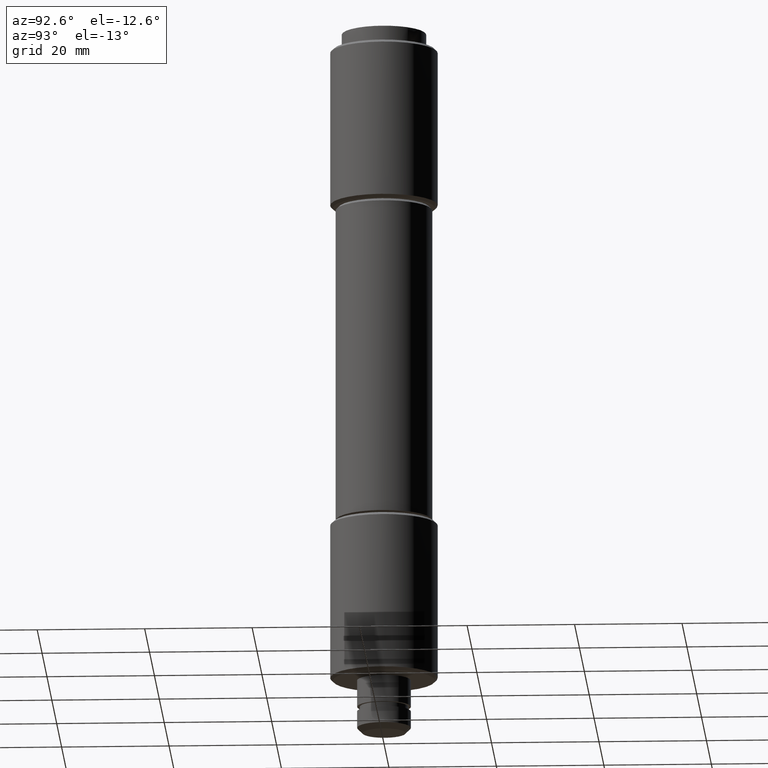
[diagram: clean part render]
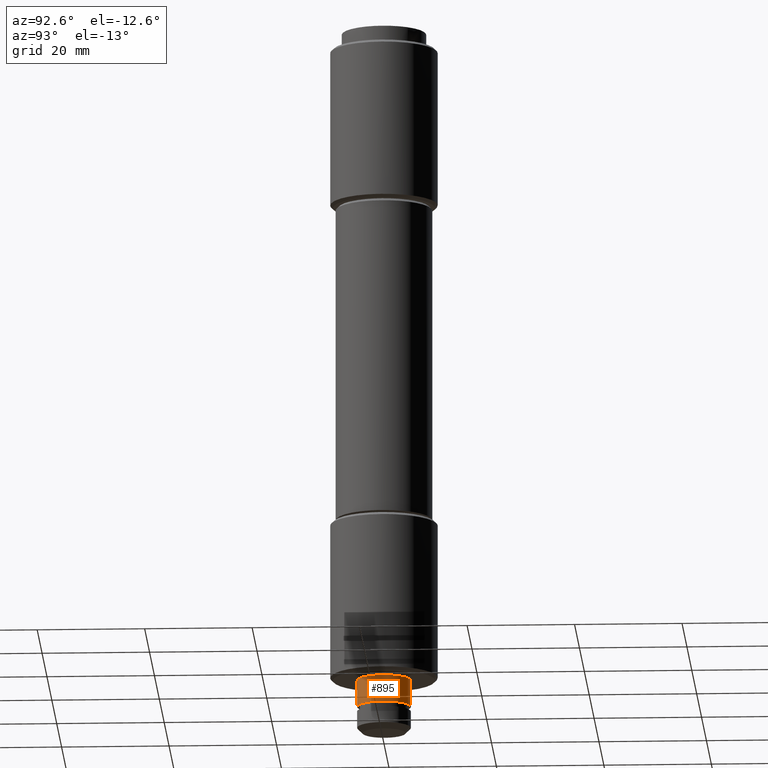
[diagram: same view with one face highlighted and labeled with its STEP entity id]
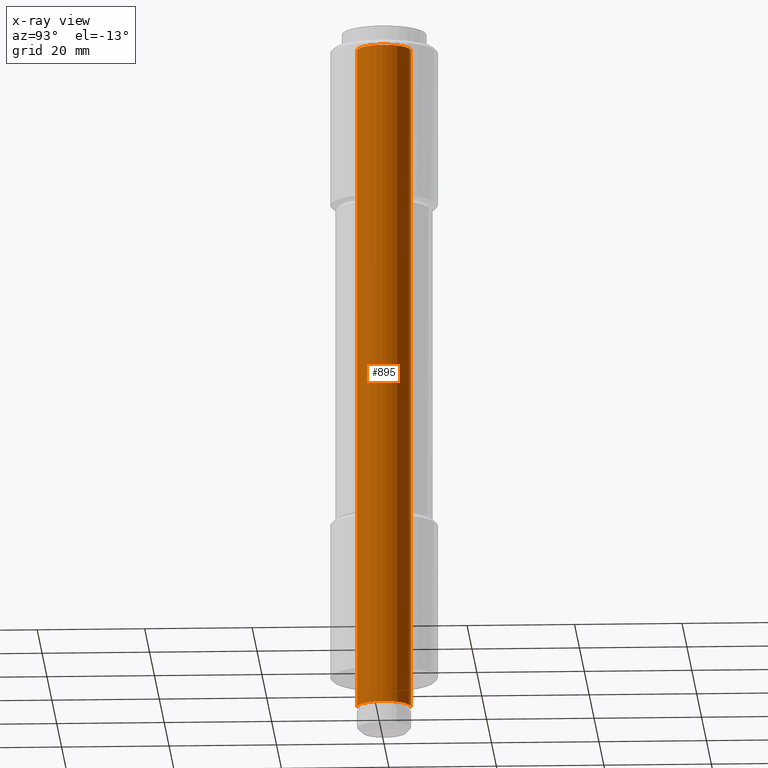
[diagram: x-ray of the same camera — body ghosted, the highlighted face saturated]
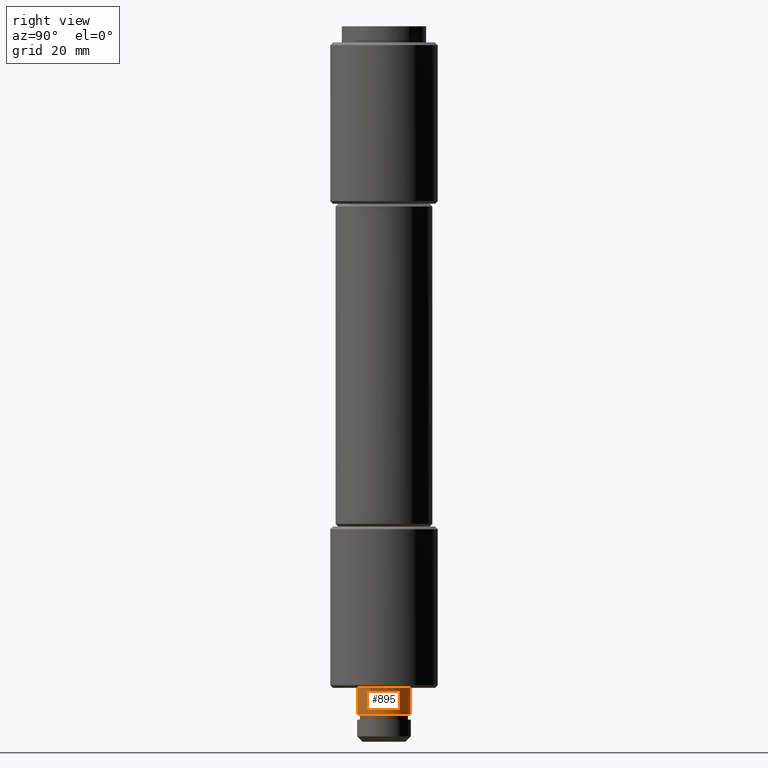
[diagram: same view with one face highlighted and labeled with its STEP entity id]
A machine part, auxiliary view. The second image highlights one B-rep face of the part: STEP entity #895.
The next image is the same camera in x-ray: the body ghosted, the highlighted face saturated — about 0% of this face is hidden behind the body in this view.
A second angle (right view) of the same face is appended — the face is thin or edge-on in the first view.
In plain terms, the highlighted face is a freeform B-spline surface patch.
Its self-contained STEP definition (entity closure, byte-faithful):
#793=CARTESIAN_POINT('',(-0.590171173283831,4.965047631818659,133.124999999999660));
#794=CARTESIAN_POINT('',(-0.448073643189918,4.981938077243357,133.124999999999630));
#795=CARTESIAN_POINT('',(-0.305242697674305,4.990673992109662,133.124999999999690));
#796=CARTESIAN_POINT('',(4.685431294435358,5.295916689783967,133.124999999999660));
#797=CARTESIAN_POINT('',(4.990673992109662,0.305242697674305,133.124999999999690));
#798=CARTESIAN_POINT('',(5.295916689783967,-4.685431294435358,133.124999999999660));
#799=CARTESIAN_POINT('',(0.305242697674305,-4.990673992109662,133.124999999999690));
#800=CARTESIAN_POINT('',(-0.590171173283831,4.965047631818659,1.796875000014638));
#801=CARTESIAN_POINT('',(-0.448073643189918,4.981938077243357,1.796875000014637));
#802=CARTESIAN_POINT('',(-0.305242697674305,4.990673992109662,1.796875000014637));
#803=CARTESIAN_POINT('',(4.685431294435358,5.295916689783967,1.796875000014638));
#804=CARTESIAN_POINT('',(4.990673992109662,0.305242697674305,1.796875000014637));
#805=CARTESIAN_POINT('',(5.295916689783967,-4.685431294435358,1.796875000014638));
#806=CARTESIAN_POINT('',(0.305242697674305,-4.990673992109662,1.796875000014637));
#814=(BOUNDED_SURFACE()B_SPLINE_SURFACE(2,1,((#793,#800),(#794,#801),(#795,#802),(#796,#803),(#797,#804),(#798,#805),(#799,#806)),.UNSPECIFIED.,.F.,.F.,.U.)B_SPLINE_SURFACE_WITH_KNOTS((3,2,2,3),(2,2),(0.0,0.331370849898498,8.615642097360944,16.899913344823389),(0.0,131.328124999984990),.UNSPECIFIED.)GEOMETRIC_REPRESENTATION_ITEM()RATIONAL_B_SPLINE_SURFACE(((0.977505800795127,0.977505800795127),(0.988284271247462,0.988284271247462),(1.0,1.0),(0.707106781186548,0.707106781186548),(1.0,1.0),(0.707106781186548,0.707106781186548),(1.0,1.0)))REPRESENTATION_ITEM('')SURFACE());
#815=CARTESIAN_POINT('',(-0.590171173576464,4.965047631784051,130.0));
#816=VERTEX_POINT('',#815);
#817=CARTESIAN_POINT('',(5.000000000000680,0.0,130.0));
#818=VERTEX_POINT('',#817);
#819=CARTESIAN_POINT('',(-0.590171173576464,4.965047631784050,130.000000000000030));
#820=CARTESIAN_POINT('',(-0.296120598555296,5.000000000000680,129.999999999999970));
#821=CARTESIAN_POINT('',(0.0,5.000000000000680,130.0));
#822=CARTESIAN_POINT('',(5.000000000000680,5.000000000000680,130.0));
#823=CARTESIAN_POINT('',(5.000000000000680,0.0,130.0));
#831=(BOUNDED_CURVE()B_SPLINE_CURVE(2,(#819,#820,#821,#822,#823),.UNSPECIFIED.,.F.,.U.)B_SPLINE_CURVE_WITH_KNOTS((3,2,3),(0.229562473495724,0.250000000000000,0.500000000000000),.UNSPECIFIED.)CURVE()GEOMETRIC_REPRESENTATION_ITEM()RATIONAL_B_SPLINE_CURVE((0.956026754148841,0.976055948310310,1.0,0.707106781186547,1.0))REPRESENTATION_ITEM(''));
#832=EDGE_CURVE('',#816,#818,#831,.T.);
#833=ORIENTED_EDGE('',*,*,#832,.T.);
#834=CARTESIAN_POINT('',(0.305242697984943,-4.990673992090839,130.0));
#835=VERTEX_POINT('',#834);
#836=CARTESIAN_POINT('',(5.000000000000680,0.0,130.0));
#837=CARTESIAN_POINT('',(5.000000000000680,-4.703530333942500,130.0));
#838=CARTESIAN_POINT('',(0.305242697984943,-4.990673992090839,130.0));
#846=(BOUNDED_CURVE()B_SPLINE_CURVE(2,(#836,#837,#838),.UNSPECIFIED.,.F.,.U.)B_SPLINE_CURVE_WITH_KNOTS((3,3),(0.500000000000000,0.739332962220489),.UNSPECIFIED.)CURVE()GEOMETRIC_REPRESENTATION_ITEM()RATIONAL_B_SPLINE_CURVE((1.0,0.719603993308330,0.976072041627167))REPRESENTATION_ITEM(''));
#847=EDGE_CURVE('',#818,#835,#846,.T.);
#848=ORIENTED_EDGE('',*,*,#847,.T.);
#849=CARTESIAN_POINT('',(0.305242697984920,-4.990673992090500,5.000000000014273));
#850=VERTEX_POINT('',#849);
#851=CARTESIAN_POINT('',(0.305242697984943,-4.990673992090839,130.0));
#852=CARTESIAN_POINT('',(0.305242697984920,-4.990673992090500,5.000000000014273));
#853=QUASI_UNIFORM_CURVE('',1,(#851,#852),.UNSPECIFIED.,.F.,.U.);
#854=EDGE_CURVE('',#835,#850,#853,.T.);
#855=ORIENTED_EDGE('',*,*,#854,.T.);
#856=CARTESIAN_POINT('',(5.0,0.0,5.000000000014270));
#857=VERTEX_POINT('',#856);
#858=CARTESIAN_POINT('',(5.0,0.0,5.000000000014270));
#859=CARTESIAN_POINT('',(5.0,-4.703530333941859,5.000000000014270));
#860=CARTESIAN_POINT('',(0.305242697984920,-4.990673992090500,5.000000000014273));
#868=(BOUNDED_CURVE()B_SPLINE_CURVE(2,(#858,#859,#860),.UNSPECIFIED.,.F.,.U.)B_SPLINE_CURVE_WITH_KNOTS((3,3),(0.500000000000000,0.739332962220489),.UNSPECIFIED.)CURVE()GEOMETRIC_REPRESENTATION_ITEM()RATIONAL_B_SPLINE_CURVE((1.0,0.719603993308331,0.976072041627167))REPRESENTATION_ITEM(''));
#869=EDGE_CURVE('',#857,#850,#868,.T.);
#870=ORIENTED_EDGE('',*,*,#869,.F.);
#871=CARTESIAN_POINT('',(-0.590171173576424,4.965047631783714,5.000000000014273));
#872=VERTEX_POINT('',#871);
#873=CARTESIAN_POINT('',(-0.590171173576424,4.965047631783714,5.000000000014274));
#874=CARTESIAN_POINT('',(-0.296120598555256,5.0,5.000000000014271));
#875=CARTESIAN_POINT('',(0.0,5.0,5.000000000014270));
#876=CARTESIAN_POINT('',(5.000000000000001,5.000000000000001,5.000000000014270));
#877=CARTESIAN_POINT('',(5.0,0.0,5.000000000014270));
#885=(BOUNDED_CURVE()B_SPLINE_CURVE(2,(#873,#874,#875,#876,#877),.UNSPECIFIED.,.F.,.U.)B_SPLINE_CURVE_WITH_KNOTS((3,2,3),(0.229562473495724,0.250000000000000,0.500000000000000),.UNSPECIFIED.)CURVE()GEOMETRIC_REPRESENTATION_ITEM()RATIONAL_B_SPLINE_CURVE((0.956026754148841,0.976055948310309,1.0,0.707106781186548,1.0))REPRESENTATION_ITEM(''));
#886=EDGE_CURVE('',#872,#857,#885,.T.);
#887=ORIENTED_EDGE('',*,*,#886,.F.);
#888=CARTESIAN_POINT('',(-0.590171173576464,4.965047631784051,130.0));
#889=CARTESIAN_POINT('',(-0.590171173576424,4.965047631783714,5.000000000014273));
#890=QUASI_UNIFORM_CURVE('',1,(#888,#889),.UNSPECIFIED.,.F.,.U.);
#891=EDGE_CURVE('',#816,#872,#890,.T.);
#892=ORIENTED_EDGE('',*,*,#891,.F.);
#893=EDGE_LOOP('',(#833,#848,#855,#870,#887,#892));
#894=FACE_OUTER_BOUND('',#893,.T.);
#895=ADVANCED_FACE('',(#894),#814,.T.);